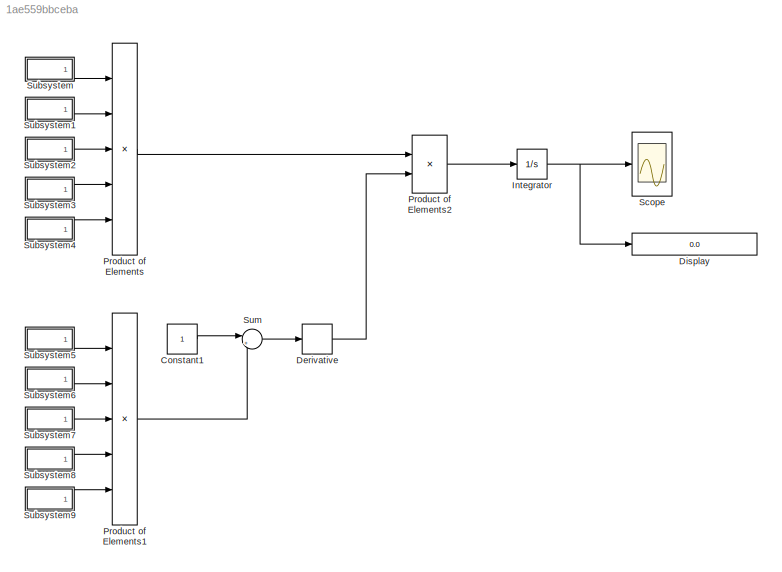
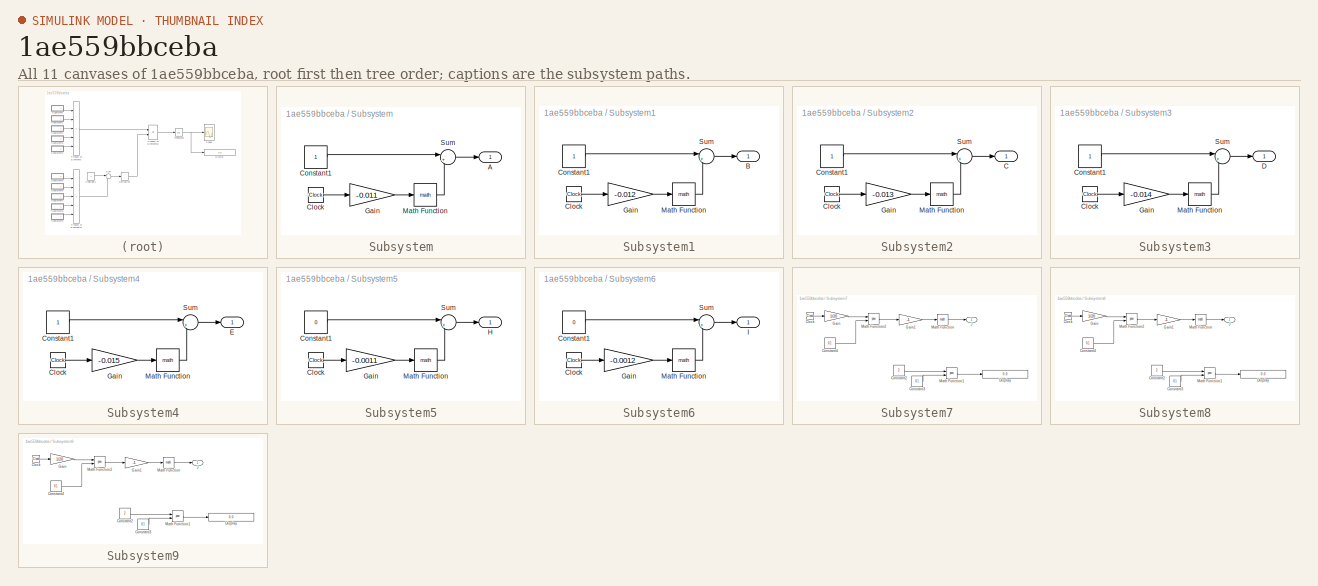
[diagram: thumbnail index - all 11 canvases of the model, root first then tree order]
MODEL slx_1ae559bbceba
KIND model
BLOCK [Constant] Constant1
BLOCK [Derivative] Derivative
BLOCK [Display] Display
  Decimation = 1
  Format = long
  Ports = [1]
BLOCK [Integrator] Integrator
  Ports = [1, 1]
BLOCK [Product] Product of Elements
  InputSameDT = off
  Inputs = 5
  OutDataTypeStr = Inherit: Inherit via internal rule
  Ports = [5, 1]
  RndMeth = Floor
  SaturateOnIntegerOverflow = off
BLOCK [Product] Product of Elements1
  InputSameDT = off
  Inputs = 5
  OutDataTypeStr = Inherit: Inherit via internal rule
  Ports = [5, 1]
  RndMeth = Floor
  SaturateOnIntegerOverflow = off
BLOCK [Product] Product of Elements2
  InputSameDT = off
  OutDataTypeStr = Inherit: Inherit via internal rule
  Ports = [2, 1]
  RndMeth = Floor
  SaturateOnIntegerOverflow = off
BLOCK [Scope] Scope
  DataFormat = StructureWithTime
  Floating = off
  LimitDataPoints = off
  NumInputPorts = 1
  Ports = [1]
  SampleTime = 0
  SaveName = Merle_Out
  SaveToWorkspace = on
  ShowLegends = off
  YMax = 1.05105
  YMin = 0.95095
BLOCK [SubSystem] Subsystem
  Ports = [0, 1]
  RequestExecContextInheritance = off
BLOCK [Outport] Subsystem/A
  IconDisplay = Port number
BLOCK [Clock] Subsystem/Clock
BLOCK [Constant] Subsystem/Constant1
BLOCK [Gain] Subsystem/Gain
  Gain = -0.011
  OutDataTypeStr = Inherit: Inherit via internal rule
  ParamDataTypeStr = Inherit: Inherit via internal rule
  SaturateOnIntegerOverflow = off
BLOCK [Math] Subsystem/Math Function
  Ports = [1, 1]
BLOCK [Sum] Subsystem/Sum
  IconShape = round
  InputSameDT = off
  Inputs = |+-
  OutDataTypeStr = Inherit: Inherit via internal rule
  Ports = [2, 1]
  SaturateOnIntegerOverflow = off
BLOCK [SubSystem] Subsystem1
  Ports = [0, 1]
  RequestExecContextInheritance = off
BLOCK [Outport] Subsystem1/B
  IconDisplay = Port number
BLOCK [Clock] Subsystem1/Clock
BLOCK [Constant] Subsystem1/Constant1
BLOCK [Gain] Subsystem1/Gain
  Gain = -0.012
  OutDataTypeStr = Inherit: Inherit via internal rule
  ParamDataTypeStr = Inherit: Inherit via internal rule
  SaturateOnIntegerOverflow = off
BLOCK [Math] Subsystem1/Math Function
  Ports = [1, 1]
BLOCK [Sum] Subsystem1/Sum
  IconShape = round
  InputSameDT = off
  Inputs = |+-
  OutDataTypeStr = Inherit: Inherit via internal rule
  Ports = [2, 1]
  SaturateOnIntegerOverflow = off
BLOCK [SubSystem] Subsystem2
  Ports = [0, 1]
  RequestExecContextInheritance = off
BLOCK [Outport] Subsystem2/C 
  IconDisplay = Port number
BLOCK [Clock] Subsystem2/Clock
BLOCK [Constant] Subsystem2/Constant1
BLOCK [Gain] Subsystem2/Gain
  Gain = -0.013
  OutDataTypeStr = Inherit: Inherit via internal rule
  ParamDataTypeStr = Inherit: Inherit via internal rule
  SaturateOnIntegerOverflow = off
BLOCK [Math] Subsystem2/Math Function
  Ports = [1, 1]
BLOCK [Sum] Subsystem2/Sum
  IconShape = round
  InputSameDT = off
  Inputs = |+-
  OutDataTypeStr = Inherit: Inherit via internal rule
  Ports = [2, 1]
  SaturateOnIntegerOverflow = off
BLOCK [SubSystem] Subsystem3
  Ports = [0, 1]
  RequestExecContextInheritance = off
BLOCK [Clock] Subsystem3/Clock
BLOCK [Constant] Subsystem3/Constant1
BLOCK [Outport] Subsystem3/D
  IconDisplay = Port number
BLOCK [Gain] Subsystem3/Gain
  Gain = -0.014
  OutDataTypeStr = Inherit: Inherit via internal rule
  ParamDataTypeStr = Inherit: Inherit via internal rule
  SaturateOnIntegerOverflow = off
BLOCK [Math] Subsystem3/Math Function
  Ports = [1, 1]
BLOCK [Sum] Subsystem3/Sum
  IconShape = round
  InputSameDT = off
  Inputs = |+-
  OutDataTypeStr = Inherit: Inherit via internal rule
  Ports = [2, 1]
  SaturateOnIntegerOverflow = off
BLOCK [SubSystem] Subsystem4
  Ports = [0, 1]
  RequestExecContextInheritance = off
BLOCK [Clock] Subsystem4/Clock
BLOCK [Constant] Subsystem4/Constant1
BLOCK [Outport] Subsystem4/E
  IconDisplay = Port number
BLOCK [Gain] Subsystem4/Gain
  Gain = -0.015
  OutDataTypeStr = Inherit: Inherit via internal rule
  ParamDataTypeStr = Inherit: Inherit via internal rule
  SaturateOnIntegerOverflow = off
BLOCK [Math] Subsystem4/Math Function
  Ports = [1, 1]
BLOCK [Sum] Subsystem4/Sum
  IconShape = round
  InputSameDT = off
  Inputs = |+-
  OutDataTypeStr = Inherit: Inherit via internal rule
  Ports = [2, 1]
  SaturateOnIntegerOverflow = off
BLOCK [SubSystem] Subsystem5
  Ports = [0, 1]
  RequestExecContextInheritance = off
BLOCK [Clock] Subsystem5/Clock
BLOCK [Constant] Subsystem5/Constant1
  Value = 0
BLOCK [Gain] Subsystem5/Gain
  Gain = -0.0011
  OutDataTypeStr = Inherit: Inherit via internal rule
  ParamDataTypeStr = Inherit: Inherit via internal rule
  SaturateOnIntegerOverflow = off
BLOCK [Outport] Subsystem5/H
  IconDisplay = Port number
BLOCK [Math] Subsystem5/Math Function
  Ports = [1, 1]
BLOCK [Sum] Subsystem5/Sum
  IconShape = round
  InputSameDT = off
  Inputs = |+-
  OutDataTypeStr = Inherit: Inherit via internal rule
  Ports = [2, 1]
  SaturateOnIntegerOverflow = off
BLOCK [SubSystem] Subsystem6
  Ports = [0, 1]
  RequestExecContextInheritance = off
BLOCK [Clock] Subsystem6/Clock
BLOCK [Constant] Subsystem6/Constant1
  Value = 0
BLOCK [Gain] Subsystem6/Gain
  Gain = -0.0012
  OutDataTypeStr = Inherit: Inherit via internal rule
  ParamDataTypeStr = Inherit: Inherit via internal rule
  SaturateOnIntegerOverflow = off
BLOCK [Outport] Subsystem6/I
  IconDisplay = Port number
BLOCK [Math] Subsystem6/Math Function
  Ports = [1, 1]
BLOCK [Sum] Subsystem6/Sum
  IconShape = round
  InputSameDT = off
  Inputs = |+-
  OutDataTypeStr = Inherit: Inherit via internal rule
  Ports = [2, 1]
  SaturateOnIntegerOverflow = off
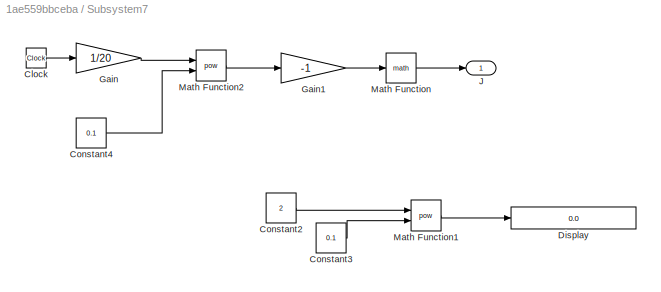
BLOCK [SubSystem] Subsystem7
  Ports = [0, 1]
  RequestExecContextInheritance = off
BLOCK [Clock] Subsystem7/Clock
BLOCK [Constant] Subsystem7/Constant2
  Value = 2
BLOCK [Constant] Subsystem7/Constant3
  Value = 0.1
BLOCK [Constant] Subsystem7/Constant4
  Value = 0.1
BLOCK [Display] Subsystem7/Display
  Decimation = 1
  Format = long
  Ports = [1]
BLOCK [Gain] Subsystem7/Gain
  Gain = 1/20
  OutDataTypeStr = Inherit: Inherit via internal rule
  ParamDataTypeStr = Inherit: Inherit via internal rule
  SaturateOnIntegerOverflow = off
BLOCK [Gain] Subsystem7/Gain1
  Gain = -1
  OutDataTypeStr = Inherit: Inherit via internal rule
  ParamDataTypeStr = Inherit: Inherit via internal rule
  SaturateOnIntegerOverflow = off
BLOCK [Outport] Subsystem7/J
  IconDisplay = Port number
BLOCK [Math] Subsystem7/Math Function
  Ports = [1, 1]
BLOCK [Math] Subsystem7/Math Function1
  Operator = pow
  Ports = [2, 1]
BLOCK [Math] Subsystem7/Math Function2
  Operator = pow
  Ports = [2, 1]
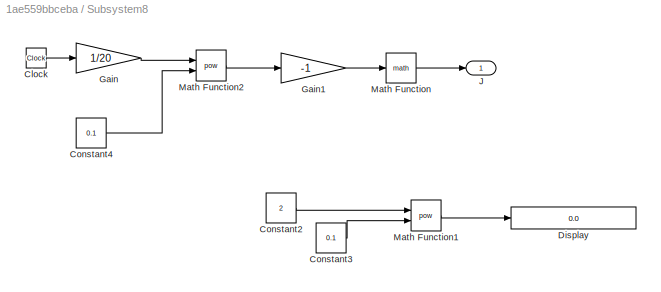
BLOCK [SubSystem] Subsystem8
  Ports = [0, 1]
  RequestExecContextInheritance = off
BLOCK [Clock] Subsystem8/Clock
BLOCK [Constant] Subsystem8/Constant2
  Value = 2
BLOCK [Constant] Subsystem8/Constant3
  Value = 0.1
BLOCK [Constant] Subsystem8/Constant4
  Value = 0.1
BLOCK [Display] Subsystem8/Display
  Decimation = 1
  Format = long
  Ports = [1]
BLOCK [Gain] Subsystem8/Gain
  Gain = 1/20
  OutDataTypeStr = Inherit: Inherit via internal rule
  ParamDataTypeStr = Inherit: Inherit via internal rule
  SaturateOnIntegerOverflow = off
BLOCK [Gain] Subsystem8/Gain1
  Gain = -1
  OutDataTypeStr = Inherit: Inherit via internal rule
  ParamDataTypeStr = Inherit: Inherit via internal rule
  SaturateOnIntegerOverflow = off
BLOCK [Outport] Subsystem8/J
  IconDisplay = Port number
BLOCK [Math] Subsystem8/Math Function
  Ports = [1, 1]
BLOCK [Math] Subsystem8/Math Function1
  Operator = pow
  Ports = [2, 1]
BLOCK [Math] Subsystem8/Math Function2
  Operator = pow
  Ports = [2, 1]
BLOCK [SubSystem] Subsystem9
  Ports = [0, 1]
  RequestExecContextInheritance = off
BLOCK [Clock] Subsystem9/Clock
BLOCK [Constant] Subsystem9/Constant2
  Value = 2
BLOCK [Constant] Subsystem9/Constant3
  Value = 0.1
BLOCK [Constant] Subsystem9/Constant4
  Value = 0.1
BLOCK [Display] Subsystem9/Display
  Decimation = 1
  Format = long
  Ports = [1]
BLOCK [Gain] Subsystem9/Gain
  Gain = 1/20
  OutDataTypeStr = Inherit: Inherit via internal rule
  ParamDataTypeStr = Inherit: Inherit via internal rule
  SaturateOnIntegerOverflow = off
BLOCK [Gain] Subsystem9/Gain1
  Gain = -1
  OutDataTypeStr = Inherit: Inherit via internal rule
  ParamDataTypeStr = Inherit: Inherit via internal rule
  SaturateOnIntegerOverflow = off
BLOCK [Outport] Subsystem9/J
  IconDisplay = Port number
BLOCK [Math] Subsystem9/Math Function
  Ports = [1, 1]
BLOCK [Math] Subsystem9/Math Function1
  Operator = pow
  Ports = [2, 1]
BLOCK [Math] Subsystem9/Math Function2
  Operator = pow
  Ports = [2, 1]
BLOCK [Sum] Sum
  IconShape = round
  InputSameDT = off
  Inputs = |+-
  OutDataTypeStr = Inherit: Inherit via internal rule
  Ports = [2, 1]
  SaturateOnIntegerOverflow = off
LINE Constant1:1 -> Sum:1
LINE Derivative:1 -> Product of Elements2:2
NET Integrator:1 -> Display:1, Scope:1
LINE Product of Elements1:1 -> Sum:2
LINE Product of Elements2:1 -> Integrator:1
LINE Product of Elements:1 -> Product of Elements2:1
LINE Subsystem/Clock:1 -> Subsystem/Gain:1
LINE Subsystem/Constant1:1 -> Subsystem/Sum:1
LINE Subsystem/Gain:1 -> Subsystem/Math Function:1
LINE Subsystem/Math Function:1 -> Subsystem/Sum:2
LINE Subsystem/Sum:1 -> Subsystem/A:1
LINE Subsystem1/Clock:1 -> Subsystem1/Gain:1
LINE Subsystem1/Constant1:1 -> Subsystem1/Sum:1
LINE Subsystem1/Gain:1 -> Subsystem1/Math Function:1
LINE Subsystem1/Math Function:1 -> Subsystem1/Sum:2
LINE Subsystem1/Sum:1 -> Subsystem1/B:1
LINE Subsystem1:1 -> Product of Elements:2
LINE Subsystem2/Clock:1 -> Subsystem2/Gain:1
LINE Subsystem2/Constant1:1 -> Subsystem2/Sum:1
LINE Subsystem2/Gain:1 -> Subsystem2/Math Function:1
LINE Subsystem2/Math Function:1 -> Subsystem2/Sum:2
LINE Subsystem2/Sum:1 -> Subsystem2/C :1
LINE Subsystem2:1 -> Product of Elements:3
LINE Subsystem3/Clock:1 -> Subsystem3/Gain:1
LINE Subsystem3/Constant1:1 -> Subsystem3/Sum:1
LINE Subsystem3/Gain:1 -> Subsystem3/Math Function:1
LINE Subsystem3/Math Function:1 -> Subsystem3/Sum:2
LINE Subsystem3/Sum:1 -> Subsystem3/D:1
LINE Subsystem3:1 -> Product of Elements:4
LINE Subsystem4/Clock:1 -> Subsystem4/Gain:1
LINE Subsystem4/Constant1:1 -> Subsystem4/Sum:1
LINE Subsystem4/Gain:1 -> Subsystem4/Math Function:1
LINE Subsystem4/Math Function:1 -> Subsystem4/Sum:2
LINE Subsystem4/Sum:1 -> Subsystem4/E:1
LINE Subsystem4:1 -> Product of Elements:5
LINE Subsystem5/Clock:1 -> Subsystem5/Gain:1
LINE Subsystem5/Constant1:1 -> Subsystem5/Sum:1
LINE Subsystem5/Gain:1 -> Subsystem5/Math Function:1
LINE Subsystem5/Math Function:1 -> Subsystem5/Sum:2
LINE Subsystem5/Sum:1 -> Subsystem5/H:1
LINE Subsystem5:1 -> Product of Elements1:1
LINE Subsystem6/Clock:1 -> Subsystem6/Gain:1
LINE Subsystem6/Constant1:1 -> Subsystem6/Sum:1
LINE Subsystem6/Gain:1 -> Subsystem6/Math Function:1
LINE Subsystem6/Math Function:1 -> Subsystem6/Sum:2
LINE Subsystem6/Sum:1 -> Subsystem6/I:1
LINE Subsystem6:1 -> Product of Elements1:2
LINE Subsystem7/Clock:1 -> Subsystem7/Gain:1
LINE Subsystem7/Constant2:1 -> Subsystem7/Math Function1:1
LINE Subsystem7/Constant3:1 -> Subsystem7/Math Function1:2
LINE Subsystem7/Constant4:1 -> Subsystem7/Math Function2:2
LINE Subsystem7/Gain1:1 -> Subsystem7/Math Function:1
LINE Subsystem7/Gain:1 -> Subsystem7/Math Function2:1
LINE Subsystem7/Math Function1:1 -> Subsystem7/Display:1
LINE Subsystem7/Math Function2:1 -> Subsystem7/Gain1:1
LINE Subsystem7/Math Function:1 -> Subsystem7/J:1
LINE Subsystem7:1 -> Product of Elements1:3
LINE Subsystem8/Clock:1 -> Subsystem8/Gain:1
LINE Subsystem8/Constant2:1 -> Subsystem8/Math Function1:1
LINE Subsystem8/Constant3:1 -> Subsystem8/Math Function1:2
LINE Subsystem8/Constant4:1 -> Subsystem8/Math Function2:2
LINE Subsystem8/Gain1:1 -> Subsystem8/Math Function:1
LINE Subsystem8/Gain:1 -> Subsystem8/Math Function2:1
LINE Subsystem8/Math Function1:1 -> Subsystem8/Display:1
LINE Subsystem8/Math Function2:1 -> Subsystem8/Gain1:1
LINE Subsystem8/Math Function:1 -> Subsystem8/J:1
LINE Subsystem8:1 -> Product of Elements1:4
LINE Subsystem9/Clock:1 -> Subsystem9/Gain:1
LINE Subsystem9/Constant2:1 -> Subsystem9/Math Function1:1
LINE Subsystem9/Constant3:1 -> Subsystem9/Math Function1:2
LINE Subsystem9/Constant4:1 -> Subsystem9/Math Function2:2
LINE Subsystem9/Gain1:1 -> Subsystem9/Math Function:1
LINE Subsystem9/Gain:1 -> Subsystem9/Math Function2:1
LINE Subsystem9/Math Function1:1 -> Subsystem9/Display:1
LINE Subsystem9/Math Function2:1 -> Subsystem9/Gain1:1
LINE Subsystem9/Math Function:1 -> Subsystem9/J:1
LINE Subsystem9:1 -> Product of Elements1:5
LINE Subsystem:1 -> Product of Elements:1
LINE Sum:1 -> Derivative:1
note: NET lines group one-source signal fan-out (src -> all destinations, sorted); 1:1 wires keep LINE
